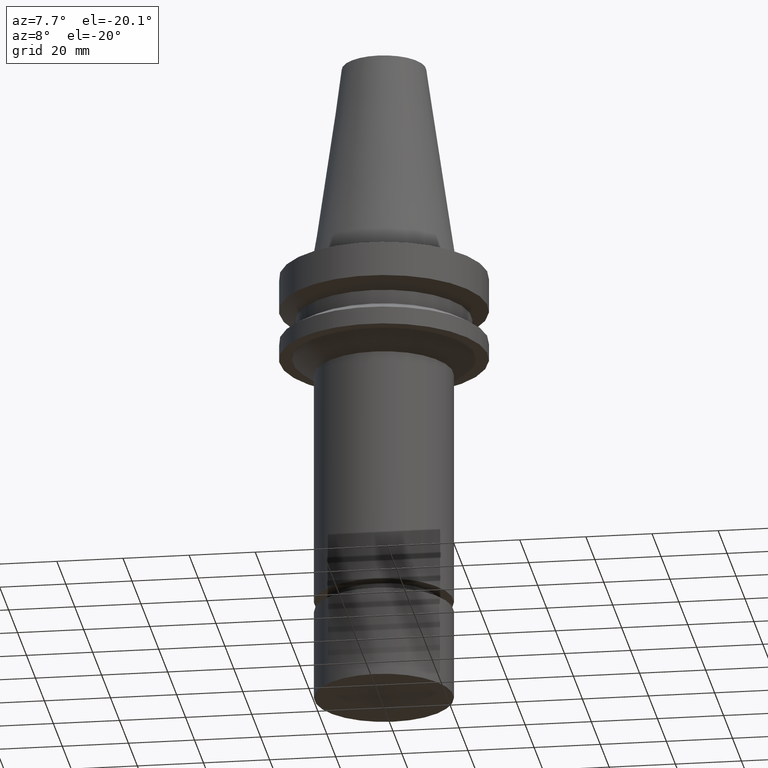
[diagram: clean part render]
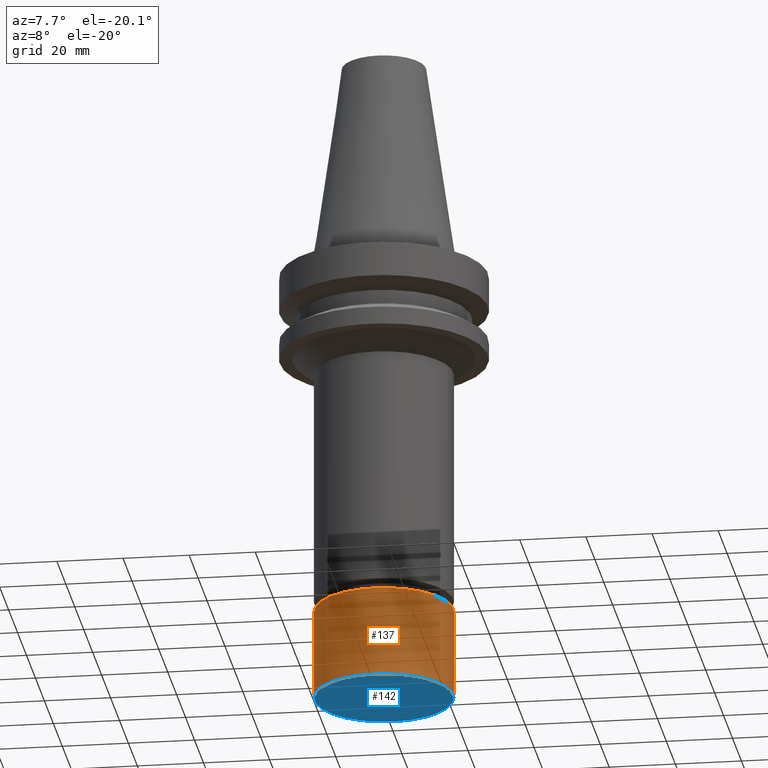
[diagram: same view with the hole feature highlighted: cylindrical wall and planar end face, labeled with their STEP entity ids]
A machine part, auxiliary view. The highlighted faces form one hole feature of diameter 42 mm: the cylindrical wall (entity #137, orange) and its adjacent planar end face (entity #142, blue) — they share a circular edge in the B-rep.
Wall:
#118=EDGE_CURVE('Unnamed[1]',#268,#268,#269,.T.);
#120=EDGE_CURVE('Unnamed[1]',#271,#271,#272,.T.);
#137=ADVANCED_FACE('Unnamed[1]',(#297,#298),#299,.T.);
#268=VERTEX_POINT('',#460);
#269=CIRCLE('',#461,21.0);
#271=VERTEX_POINT('',#464);
#272=CIRCLE('',#465,21.0);
#297=FACE_BOUND('',#496,.T.);
#298=FACE_BOUND('',#497,.T.);
#299=CYLINDRICAL_SURFACE('',#498,21.0);
#460=CARTESIAN_POINT('',(8.26636589424463E-015,21.0,-135.0));
#461=AXIS2_PLACEMENT_3D('',#653,#654,#655);
#464=CARTESIAN_POINT('',(6.58247654541702E-015,21.0,-107.5));
#465=AXIS2_PLACEMENT_3D('',#656,#657,#658);
#496=EDGE_LOOP('',(#686));
#497=EDGE_LOOP('',(#687));
#498=AXIS2_PLACEMENT_3D('',#688,#689,#690);
#653=CARTESIAN_POINT('',(8.26636589424463E-015,5.83277632963118E-014,-135.0));
#654=DIRECTION('',(6.12323399573676E-017,-9.35480732738317E-017,-1.0));
#655=DIRECTION('',(9.01014694290972E-034,1.0,-9.35480732738317E-017));
#656=CARTESIAN_POINT('',(6.58247654541702E-015,6.09003353113422E-014,-107.5));
#657=DIRECTION('',(6.12323399573677E-017,-9.35480732738317E-017,-1.0));
#658=DIRECTION('',(9.01014694290988E-034,1.0,-9.35480732738317E-017));
#686=ORIENTED_EDGE('',*,*,#118,.F.);
#687=ORIENTED_EDGE('',*,*,#120,.T.);
#688=CARTESIAN_POINT('',(7.42442121983083E-015,5.9614049303827E-014,-121.25));
#689=DIRECTION('',(6.12323399573677E-017,-9.35480732738317E-017,-1.0));
#690=DIRECTION('',(9.01014694290988E-034,1.0,-9.35480732738317E-017));
End face:
#118=EDGE_CURVE('Unnamed[1]',#268,#268,#269,.T.);
#142=ADVANCED_FACE('Unnamed[1]',(#305),#306,.T.);
#268=VERTEX_POINT('',#460);
#269=CIRCLE('',#461,21.0);
#305=FACE_OUTER_BOUND('',#506,.T.);
#306=PLANE('',#507);
#460=CARTESIAN_POINT('',(8.26636589424463E-015,21.0,-135.0));
#461=AXIS2_PLACEMENT_3D('',#653,#654,#655);
#506=EDGE_LOOP('',(#695));
#507=AXIS2_PLACEMENT_3D('',#696,#697,#698);
#653=CARTESIAN_POINT('',(8.26636589424463E-015,5.83277632963118E-014,-135.0));
#654=DIRECTION('',(6.12323399573676E-017,-9.35480732738317E-017,-1.0));
#655=DIRECTION('',(9.01014694290972E-034,1.0,-9.35480732738317E-017));
#695=ORIENTED_EDGE('',*,*,#118,.T.);
#696=CARTESIAN_POINT('',(8.26636589424463E-015,10.5,-135.0));
#697=DIRECTION('',(6.12323399573677E-017,1.22464679914735E-016,-1.0));
#698=DIRECTION('',(-1.23259516440783E-032,1.0,1.22464679914735E-016));